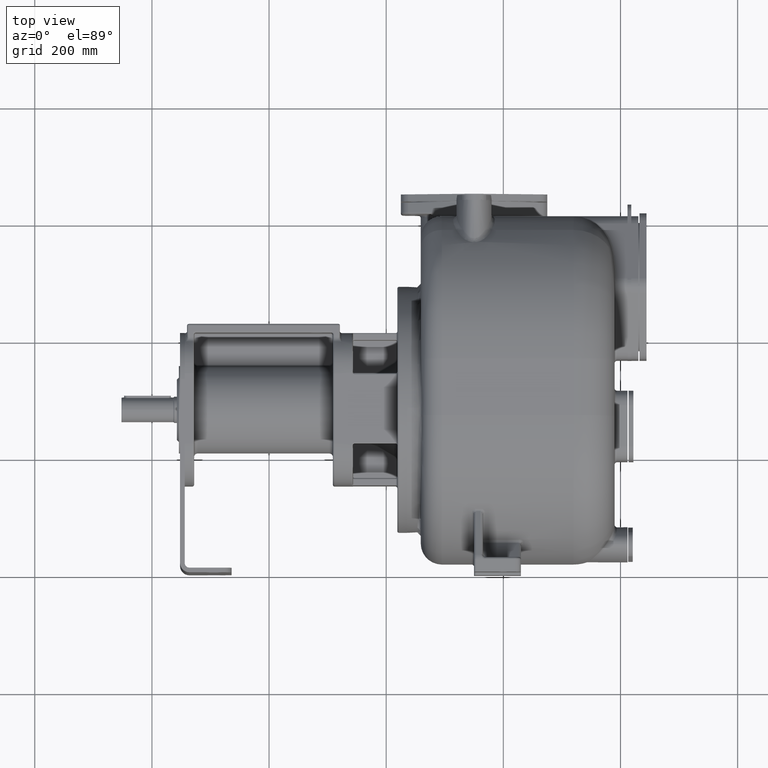
[diagram: clean part render]
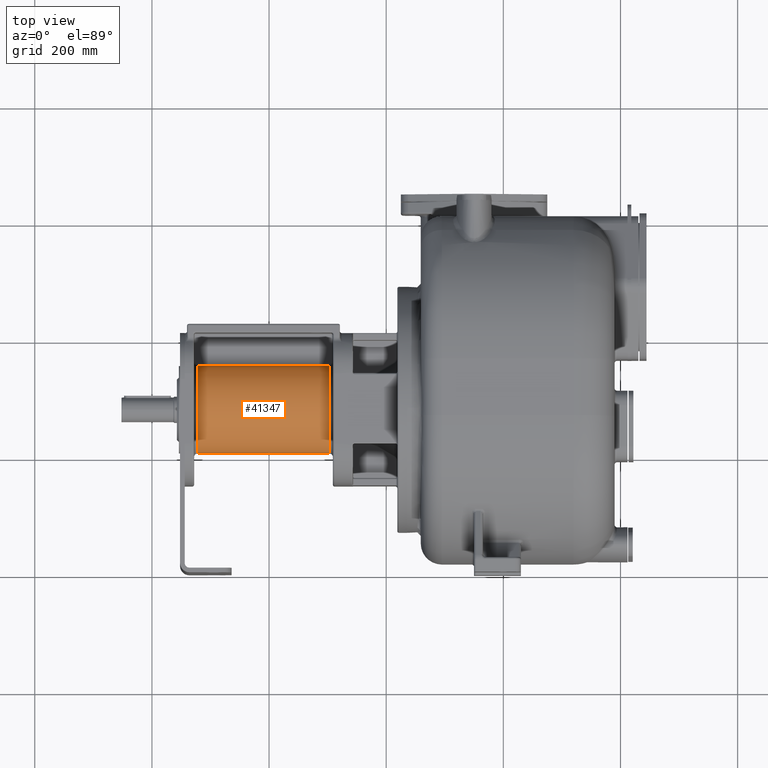
[diagram: same view with one face highlighted and labeled with its STEP entity id]
A machine part, top view. The second image highlights one B-rep face of the part: STEP entity #41347.
In plain terms, the highlighted cylindrical surface (partial cylindrical patch) has radius 75 mm, axis along (-1, 0, 0).
Its self-contained STEP definition (entity closure, byte-faithful):
#14166=CARTESIAN_POINT('',(-2.97E2,3.546044797760E2,-7.692307692506E0));
#14168=CARTESIAN_POINT('',(-2.97E2,2.8E2,0.E0));
#14169=DIRECTION('',(-1.E0,0.E0,0.E0));
#14170=DIRECTION('',(0.E0,9.947263969882E-1,-1.025641025641E-1));
#14171=AXIS2_PLACEMENT_3D('',#14168,#14169,#14170);
#14870=CARTESIAN_POINT('',(-5.22E2,3.546044797762E2,7.692307692518E0));
#14872=CARTESIAN_POINT('',(-5.22E2,2.8E2,0.E0));
#14873=DIRECTION('',(1.E0,0.E0,0.E0));
#14874=DIRECTION('',(0.E0,9.947263969882E-1,1.025641025641E-1));
#14875=AXIS2_PLACEMENT_3D('',#14872,#14873,#14874);
#15025=DIRECTION('',(-1.E0,5.088117581585E-13,-5.244594881838E-14));
#15026=VECTOR('',#15025,2.25E2);
#15027=CARTESIAN_POINT('',(-2.97E2,3.546044797760E2,-7.692307692506E0));
#15028=LINE('',#15027,#15026);
#15029=DIRECTION('',(1.E0,-5.088117581585E-13,-5.246568611660E-14));
#15030=VECTOR('',#15029,2.25E2);
#15031=CARTESIAN_POINT('',(-5.22E2,3.546044797762E2,7.692307692518E0));
#15032=LINE('',#15031,#15030);
#24696=VERTEX_POINT('',#14166);
#24697=CARTESIAN_POINT('',(-5.22E2,3.546044797762E2,-7.692307692518E0));
#24698=VERTEX_POINT('',#24697);
#24711=VERTEX_POINT('',#14870);
#24712=CARTESIAN_POINT('',(-2.97E2,3.546044797760E2,7.692307692506E0));
#24713=VERTEX_POINT('',#24712);
#41335=CARTESIAN_POINT('',(-2.5175E2,2.8E2,0.E0));
#41336=DIRECTION('',(-1.E0,0.E0,0.E0));
#41337=DIRECTION('',(0.E0,-1.E0,0.E0));
#41338=AXIS2_PLACEMENT_3D('',#41335,#41336,#41337);
#41339=CYLINDRICAL_SURFACE('',#41338,7.5E1);
#41341=ORIENTED_EDGE('',*,*,#41340,.T.);
#41342=ORIENTED_EDGE('',*,*,#41041,.F.);
#41343=ORIENTED_EDGE('',*,*,#41327,.T.);
#41344=ORIENTED_EDGE('',*,*,#40041,.F.);
#41345=EDGE_LOOP('',(#41341,#41342,#41343,#41344));
#41346=FACE_OUTER_BOUND('',#41345,.F.);
#41347=ADVANCED_FACE('',(#41346),#41339,.T.);
#14172=CIRCLE('',#14171,7.5E1);
#14876=CIRCLE('',#14875,7.5E1);
#40041=EDGE_CURVE('',#24696,#24713,#14172,.T.);
#41041=EDGE_CURVE('',#24711,#24698,#14876,.T.);
#41327=EDGE_CURVE('',#24711,#24713,#15032,.T.);
#41340=EDGE_CURVE('',#24696,#24698,#15028,.T.);